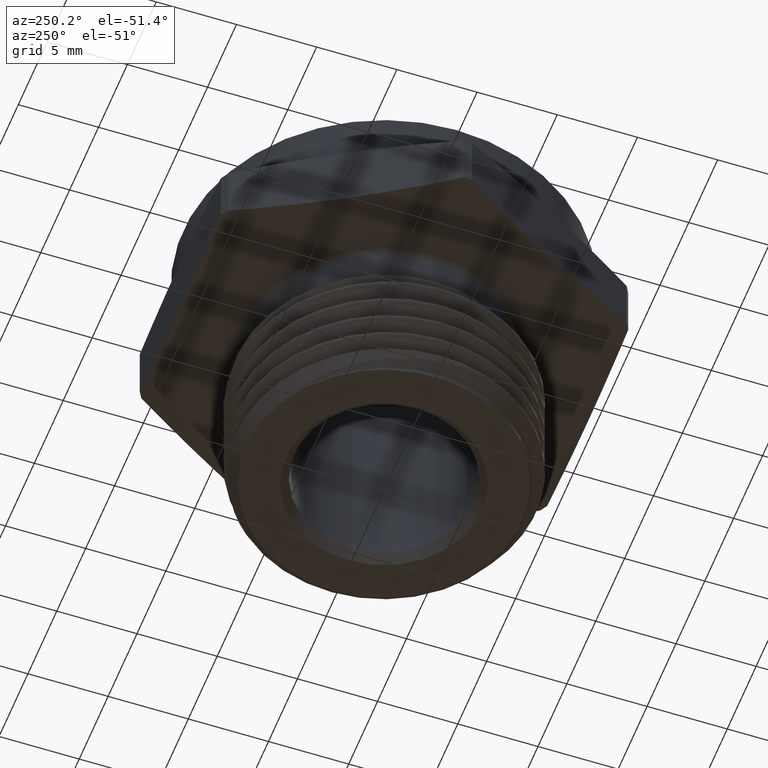
[diagram: clean part render]
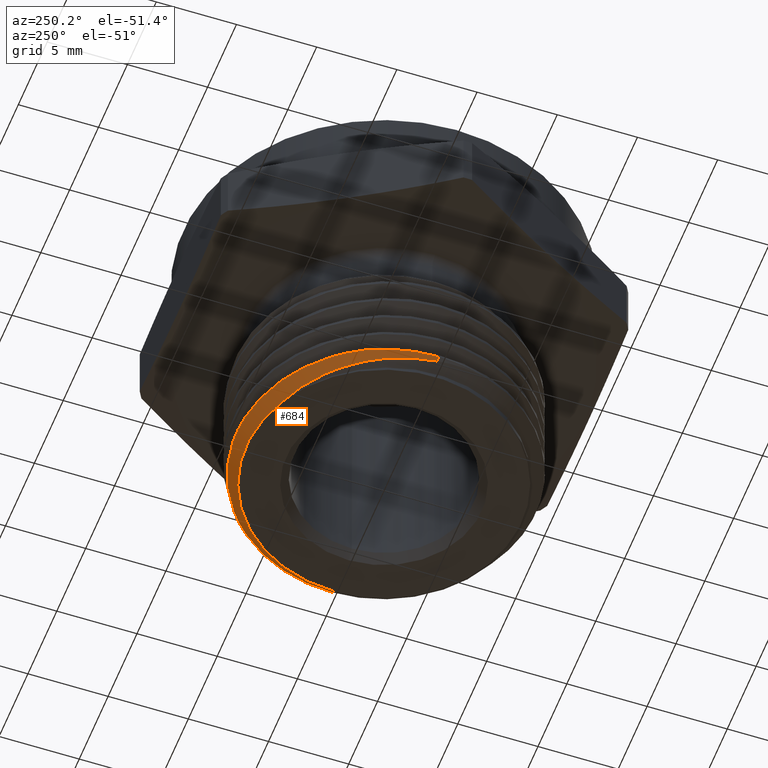
[diagram: same view with one face highlighted and labeled with its STEP entity id]
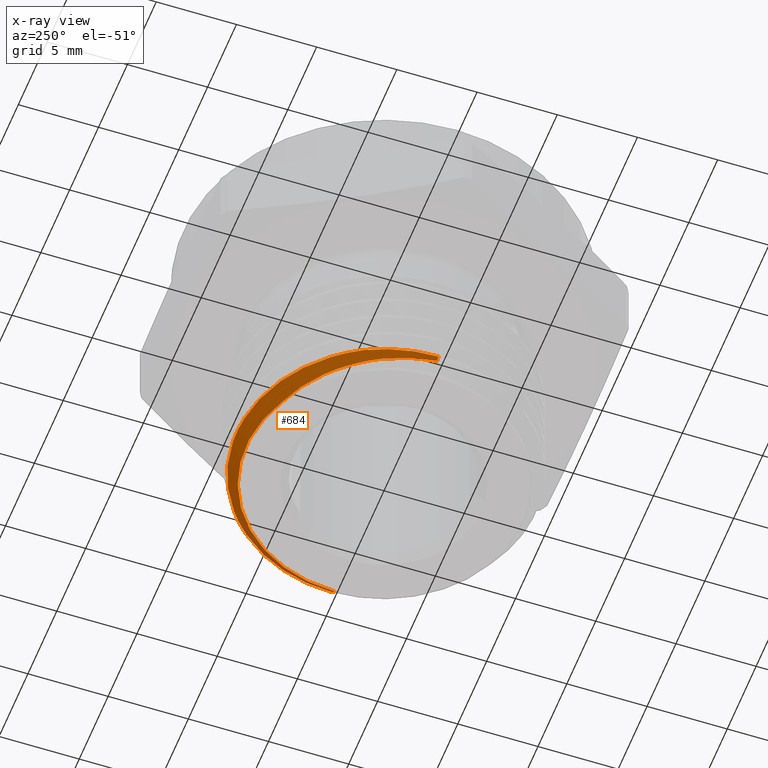
[diagram: x-ray of the same camera — body ghosted, the highlighted face saturated]
A machine part, auxiliary view. The second image highlights one B-rep face of the part: STEP entity #684.
The next image is the same camera in x-ray: the body ghosted, the highlighted face saturated — about 0% of this face is hidden behind the body in this view.
In plain terms, the highlighted conical surface has half-angle 45 deg.
Its self-contained STEP definition (entity closure, byte-faithful):
#17 = ORIENTED_EDGE ( 'NONE', *, *, #2572, .T. ) ;
#111 = FACE_OUTER_BOUND ( 'NONE', #729, .T. ) ;
#118 = CONICAL_SURFACE ( 'NONE', #461, 0.3377499999999999900, 0.7853981633974611600 ) ;
#126 = CIRCLE ( 'NONE', #473, 0.3377499999999999900 ) ;
#127 = LINE ( 'NONE', #1558, #128 ) ;
#128 = VECTOR ( 'NONE', #1519, 39.37007874015748100 ) ;
#129 = LINE ( 'NONE', #1562, #131 ) ;
#131 = VECTOR ( 'NONE', #1557, 39.37007874015748100 ) ;
#132 = CIRCLE ( 'NONE', #474, 0.3715000000000000000 ) ;
#296 = B_SPLINE_CURVE_WITH_KNOTS ( 'NONE', 3,
 ( #1563, #1564, #1569, #1570, #1571, #1572, #1573, #1574, #1575, #1576, #1577, #1578, #1579, #1580, #1581, #1582, #1583, #1584, #1585, #1586, #1587, #1588, #1589, #1590, #1591, #1592, #1593, #1594, #1595, #1596, #1597, #1598, #1599, #1600 ),
 .UNSPECIFIED., .F., .F.,
 ( 4, 2, 2, 2, 2, 2, 2, 2, 2, 2, 2, 2, 2, 2, 2, 2, 4 ),
 ( 0.02363267075669638400, 0.02517561335285875900, 0.02671855594902113100, 0.02826149854518350500, 0.02980444114134588000, 0.03134738373750824800, 0.03289032633367062300, 0.03443326892983299100, 0.03597621152599536600, 0.03751915412215773400, 0.03906209671832010900, 0.04060503931448247700, 0.04214798191064485200, 0.04369092450680722000, 0.04523386710296958800, 0.04677680969913195600, 0.04831975229529432400 ),
 .UNSPECIFIED. ) ;
#297 = B_SPLINE_CURVE_WITH_KNOTS ( 'NONE', 3,
 ( #1602, #1601, #1607, #1608, #1609, #1610, #1611, #1612, #1613, #1614, #1615, #1616, #1617, #1618, #1619, #1620 ),
 .UNSPECIFIED., .F., .F.,
 ( 4, 2, 2, 2, 2, 2, 2, 4 ),
 ( 0.003034115471411674400, 0.004281607550700988100, 0.005529099629990302100, 0.008024083788568930200, 0.009271575867858246000, 0.01051906794714756200, 0.01176656002643687600, 0.01301405210572619200 ),
 .UNSPECIFIED. ) ;
#341 = ORIENTED_EDGE ( 'NONE', *, *, #2577, .F. ) ;
#342 = ORIENTED_EDGE ( 'NONE', *, *, #2576, .F. ) ;
#343 = ORIENTED_EDGE ( 'NONE', *, *, #2575, .F. ) ;
#344 = ORIENTED_EDGE ( 'NONE', *, *, #2574, .F. ) ;
#345 = ORIENTED_EDGE ( 'NONE', *, *, #2573, .T. ) ;
#407 = VERTEX_POINT ( 'NONE', #3035 ) ;
#461 = AXIS2_PLACEMENT_3D ( 'NONE', #1477, #1478, #1476 ) ;
#473 = AXIS2_PLACEMENT_3D ( 'NONE', #1565, #1566, #1567 ) ;
#474 = AXIS2_PLACEMENT_3D ( 'NONE', #1604, #1605, #1606 ) ;
#684 = ADVANCED_FACE ( 'NONE', ( #111 ), #118, .T. ) ;
#729 = EDGE_LOOP ( 'NONE', ( #341, #17, #342, #343, #344, #345 ) ) ;
#1476 = DIRECTION ( 'NONE',  ( 1.000000000000000000, 0.0000000000000000000, 0.0000000000000000000 ) ) ;
#1477 = CARTESIAN_POINT ( 'NONE',  ( 0.0000000000000000000, 0.0000000000000000000, -0.4400000000000001100 ) ) ;
#1478 = DIRECTION ( 'NONE',  ( -0.0000000000000000000, -0.0000000000000000000, 1.000000000000000000 ) ) ;
#1485 = CARTESIAN_POINT ( 'NONE',  ( 0.3377499999999999900, 0.0000000000000000000, -0.4400000000000001100 ) ) ;
#1486 = CARTESIAN_POINT ( 'NONE',  ( 0.3546658207002317300, -7.261758674133097300E-013, -0.4230841792997687100 ) ) ;
#1489 = CARTESIAN_POINT ( 'NONE',  ( -0.3715000000000000000, 4.549562858832417000E-017, -0.4062500000000009400 ) ) ;
#1496 = CARTESIAN_POINT ( 'NONE',  ( -0.3639115553709050300, -8.526122875456338700E-016, -0.4138384446290958600 ) ) ;
#1499 = CARTESIAN_POINT ( 'NONE',  ( -0.1492037028189109300, 0.3030071246111650200, -0.4400000000000000000 ) ) ;
#1519 = DIRECTION ( 'NONE',  ( -0.7071067811865565700, 8.659560562355043800E-017, 0.7071067811865384700 ) ) ;
#1557 = DIRECTION ( 'NONE',  ( 0.7071067811865565700, 0.0000000000000000000, 0.7071067811865384700 ) ) ;
#1558 = CARTESIAN_POINT ( 'NONE',  ( -0.3377499999999999900, 4.136244564120184600E-017, -0.4400000000000001100 ) ) ;
#1562 = CARTESIAN_POINT ( 'NONE',  ( 0.3377499999999999900, 0.0000000000000000000, -0.4400000000000001100 ) ) ;
#1563 = CARTESIAN_POINT ( 'NONE',  ( 0.3546658207002317300, -7.261758674133097300E-013, -0.4230841792997687100 ) ) ;
#1564 = CARTESIAN_POINT ( 'NONE',  ( 0.3550062964867964900, 0.02019751751147487800, -0.4227437035132460300 ) ) ;
#1565 = CARTESIAN_POINT ( 'NONE',  ( 0.0000000000000000000, 0.0000000000000000000, -0.4400000000000001100 ) ) ;
#1566 = DIRECTION ( 'NONE',  ( -0.0000000000000000000, -0.0000000000000000000, 1.000000000000000000 ) ) ;
#1567 = DIRECTION ( 'NONE',  ( 1.000000000000000000, 0.0000000000000000000, 0.0000000000000000000 ) ) ;
#1569 = CARTESIAN_POINT ( 'NONE',  ( 0.3536426976141385800, 0.04027216762553215800, -0.4223943182320756300 ) ) ;
#1570 = CARTESIAN_POINT ( 'NONE',  ( 0.3475144921417052100, 0.08017625356269478300, -0.4216780839668212200 ) ) ;
#1571 = CARTESIAN_POINT ( 'NONE',  ( 0.3426792224030347800, 0.1001441614275939100, -0.4213084364014873000 ) ) ;
#1572 = CARTESIAN_POINT ( 'NONE',  ( 0.3298738036728415800, 0.1384300966931539000, -0.4205773474272810300 ) ) ;
#1573 = CARTESIAN_POINT ( 'NONE',  ( 0.3219047050155490800, 0.1568988844533133200, -0.4202133527454331400 ) ) ;
#1574 = CARTESIAN_POINT ( 'NONE',  ( 0.3028322746379927800, 0.1924874730861047800, -0.4194884071189191600 ) ) ;
#1575 = CARTESIAN_POINT ( 'NONE',  ( 0.2916211288316117900, 0.2097046216697366900, -0.4191251193372219100 ) ) ;
#1576 = CARTESIAN_POINT ( 'NONE',  ( 0.2668012114068092400, 0.2415304432787695700, -0.4184273937833849500 ) ) ;
#1577 = CARTESIAN_POINT ( 'NONE',  ( 0.2531303377826137300, 0.2562858472311218500, -0.4180976845164594600 ) ) ;
#1578 = CARTESIAN_POINT ( 'NONE',  ( 0.2233109280526582000, 0.2835206717323762200, -0.4174110949077587400 ) ) ;
#1579 = CARTESIAN_POINT ( 'NONE',  ( 0.2070362592869614300, 0.2960487505974970800, -0.4170535523875047400 ) ) ;
#1580 = CARTESIAN_POINT ( 'NONE',  ( 0.1731093890682549900, 0.3178952406287089400, -0.4163398499926077000 ) ) ;
#1581 = CARTESIAN_POINT ( 'NONE',  ( 0.1553501353870005700, 0.3273388598491387400, -0.4159810219303412500 ) ) ;
#1582 = CARTESIAN_POINT ( 'NONE',  ( 0.1182361315087188100, 0.3432596736127351300, -0.4152594675935104600 ) ) ;
#1583 = CARTESIAN_POINT ( 'NONE',  ( 0.09874761402426697500, 0.3497425298628778500, -0.4148945243303013800 ) ) ;
#1584 = CARTESIAN_POINT ( 'NONE',  ( 0.05953094376751749000, 0.3592231962458393700, -0.4141865175928146600 ) ) ;
#1585 = CARTESIAN_POINT ( 'NONE',  ( 0.03965903315330590600, 0.3623046313997134200, -0.4138404962449873100 ) ) ;
#1586 = CARTESIAN_POINT ( 'NONE',  ( -0.0006129133595857389800, 0.3651435433782082600, -0.4131641733247682400 ) ) ;
#1587 = CARTESIAN_POINT ( 'NONE',  ( -0.02114890328110032400, 0.3648639510463440600, -0.4128311332641755300 ) ) ;
#1588 = CARTESIAN_POINT ( 'NONE',  ( -0.06132683505018699700, 0.3609903912265826600, -0.4121438681151392000 ) ) ;
#1589 = CARTESIAN_POINT ( 'NONE',  ( -0.08112296210534636300, 0.3574206529570357900, -0.4117949011277565700 ) ) ;
#1590 = CARTESIAN_POINT ( 'NONE',  ( -0.1201292419426888100, 0.3470135878770561100, -0.4110864741474184500 ) ) ;
#1591 = CARTESIAN_POINT ( 'NONE',  ( -0.1394651636780243600, 0.3400947650334697500, -0.4107244342537620900 ) ) ;
#1592 = CARTESIAN_POINT ( 'NONE',  ( -0.1762145934338018900, 0.3233961373573243100, -0.4100144572180786700 ) ) ;
#1593 = CARTESIAN_POINT ( 'NONE',  ( -0.1937752825524284000, 0.3136003209532068900, -0.4096639900149578500 ) ) ;
#1594 = CARTESIAN_POINT ( 'NONE',  ( -0.2272717046829087500, 0.2911211887818800900, -0.4089719317479264500 ) ) ;
#1595 = CARTESIAN_POINT ( 'NONE',  ( -0.2433179722642412600, 0.2783082485406134800, -0.4086277112802488300 ) ) ;
#1596 = CARTESIAN_POINT ( 'NONE',  ( -0.2726870170707063100, 0.2505719553685997200, -0.4079707938602489800 ) ) ;
#1597 = CARTESIAN_POINT ( 'NONE',  ( -0.2861351240267399600, 0.2356149768356160200, -0.4076401421141568900 ) ) ;
#1598 = CARTESIAN_POINT ( 'NONE',  ( -0.3105849304353862100, 0.2035470326444753200, -0.4069562919827821000 ) ) ;
#1599 = CARTESIAN_POINT ( 'NONE',  ( -0.3216286580773618500, 0.1863332134887117400, -0.4066041406365781800 ) ) ;
#1600 = CARTESIAN_POINT ( 'NONE',  ( -0.3311831024929816600, 0.1683151883316630300, -0.4062500000000011100 ) ) ;
#1601 = CARTESIAN_POINT ( 'NONE',  ( -0.3629157977085804000, 0.01624031242269950000, -0.4148342022914183200 ) ) ;
#1602 = CARTESIAN_POINT ( 'NONE',  ( -0.3639115553709050300, -8.526122875456338700E-016, -0.4138384446290958600 ) ) ;
#1604 = CARTESIAN_POINT ( 'NONE',  ( 0.0000000000000000000, 0.0000000000000000000, -0.4062500000000009400 ) ) ;
#1605 = DIRECTION ( 'NONE',  ( -0.0000000000000000000, -0.0000000000000000000, 1.000000000000000000 ) ) ;
#1606 = DIRECTION ( 'NONE',  ( 1.000000000000000000, 0.0000000000000000000, 0.0000000000000000000 ) ) ;
#1607 = CARTESIAN_POINT ( 'NONE',  ( -0.3608121409363216300, 0.03232180162862730700, -0.4158558627517736600 ) ) ;
#1608 = CARTESIAN_POINT ( 'NONE',  ( -0.3543990777813815800, 0.06416840003109360000, -0.4179534511534190300 ) ) ;
#1609 = CARTESIAN_POINT ( 'NONE',  ( -0.3500544344087364000, 0.08003030148263226600, -0.4190362791249662700 ) ) ;
#1610 = CARTESIAN_POINT ( 'NONE',  ( -0.3337848996954042600, 0.1264298657824805000, -0.4223246497729673000 ) ) ;
#1611 = CARTESIAN_POINT ( 'NONE',  ( -0.3189411086472904700, 0.1552598561195000200, -0.4245291839502585200 ) ) ;
#1612 = CARTESIAN_POINT ( 'NONE',  ( -0.2907238811888135900, 0.1953735292662811300, -0.4278569251509709600 ) ) ;
#1613 = CARTESIAN_POINT ( 'NONE',  ( -0.2803058535934054300, 0.2081845858109507300, -0.4289679629755420200 ) ) ;
#1614 = CARTESIAN_POINT ( 'NONE',  ( -0.2580956558302113800, 0.2319438209408276300, -0.4311262563614785500 ) ) ;
#1615 = CARTESIAN_POINT ( 'NONE',  ( -0.2462442791402105200, 0.2430174754644496300, -0.4321624380600159700 ) ) ;
#1616 = CARTESIAN_POINT ( 'NONE',  ( -0.2209585541830487200, 0.2634401882202263600, -0.4342963058673010000 ) ) ;
#1617 = CARTESIAN_POINT ( 'NONE',  ( -0.2074325277813210100, 0.2728342597433265900, -0.4354074788118714200 ) ) ;
#1618 = CARTESIAN_POINT ( 'NONE',  ( -0.1791468580374291100, 0.2895257809522308000, -0.4376759058342008000 ) ) ;
#1619 = CARTESIAN_POINT ( 'NONE',  ( -0.1644529604370185400, 0.2968043095776870000, -0.4388282796326510900 ) ) ;
#1620 = CARTESIAN_POINT ( 'NONE',  ( -0.1492037028189109300, 0.3030071246111650200, -0.4400000000000000000 ) ) ;
#2500 = VERTEX_POINT ( 'NONE', #1486 ) ;
#2506 = VERTEX_POINT ( 'NONE', #1489 ) ;
#2507 = VERTEX_POINT ( 'NONE', #1485 ) ;
#2514 = VERTEX_POINT ( 'NONE', #1496 ) ;
#2517 = VERTEX_POINT ( 'NONE', #1499 ) ;
#2572 = EDGE_CURVE ( 'NONE', #2514, #2506, #127, .T. ) ;
#2573 = EDGE_CURVE ( 'NONE', #2507, #2517, #126, .T. ) ;
#2574 = EDGE_CURVE ( 'NONE', #2507, #2500, #129, .T. ) ;
#2575 = EDGE_CURVE ( 'NONE', #2500, #407, #296, .T. ) ;
#2576 = EDGE_CURVE ( 'NONE', #407, #2506, #132, .T. ) ;
#2577 = EDGE_CURVE ( 'NONE', #2514, #2517, #297, .T. ) ;
#3035 = CARTESIAN_POINT ( 'NONE',  ( -0.3311831024929816600, 0.1683151883316630300, -0.4062500000000011100 ) ) ;